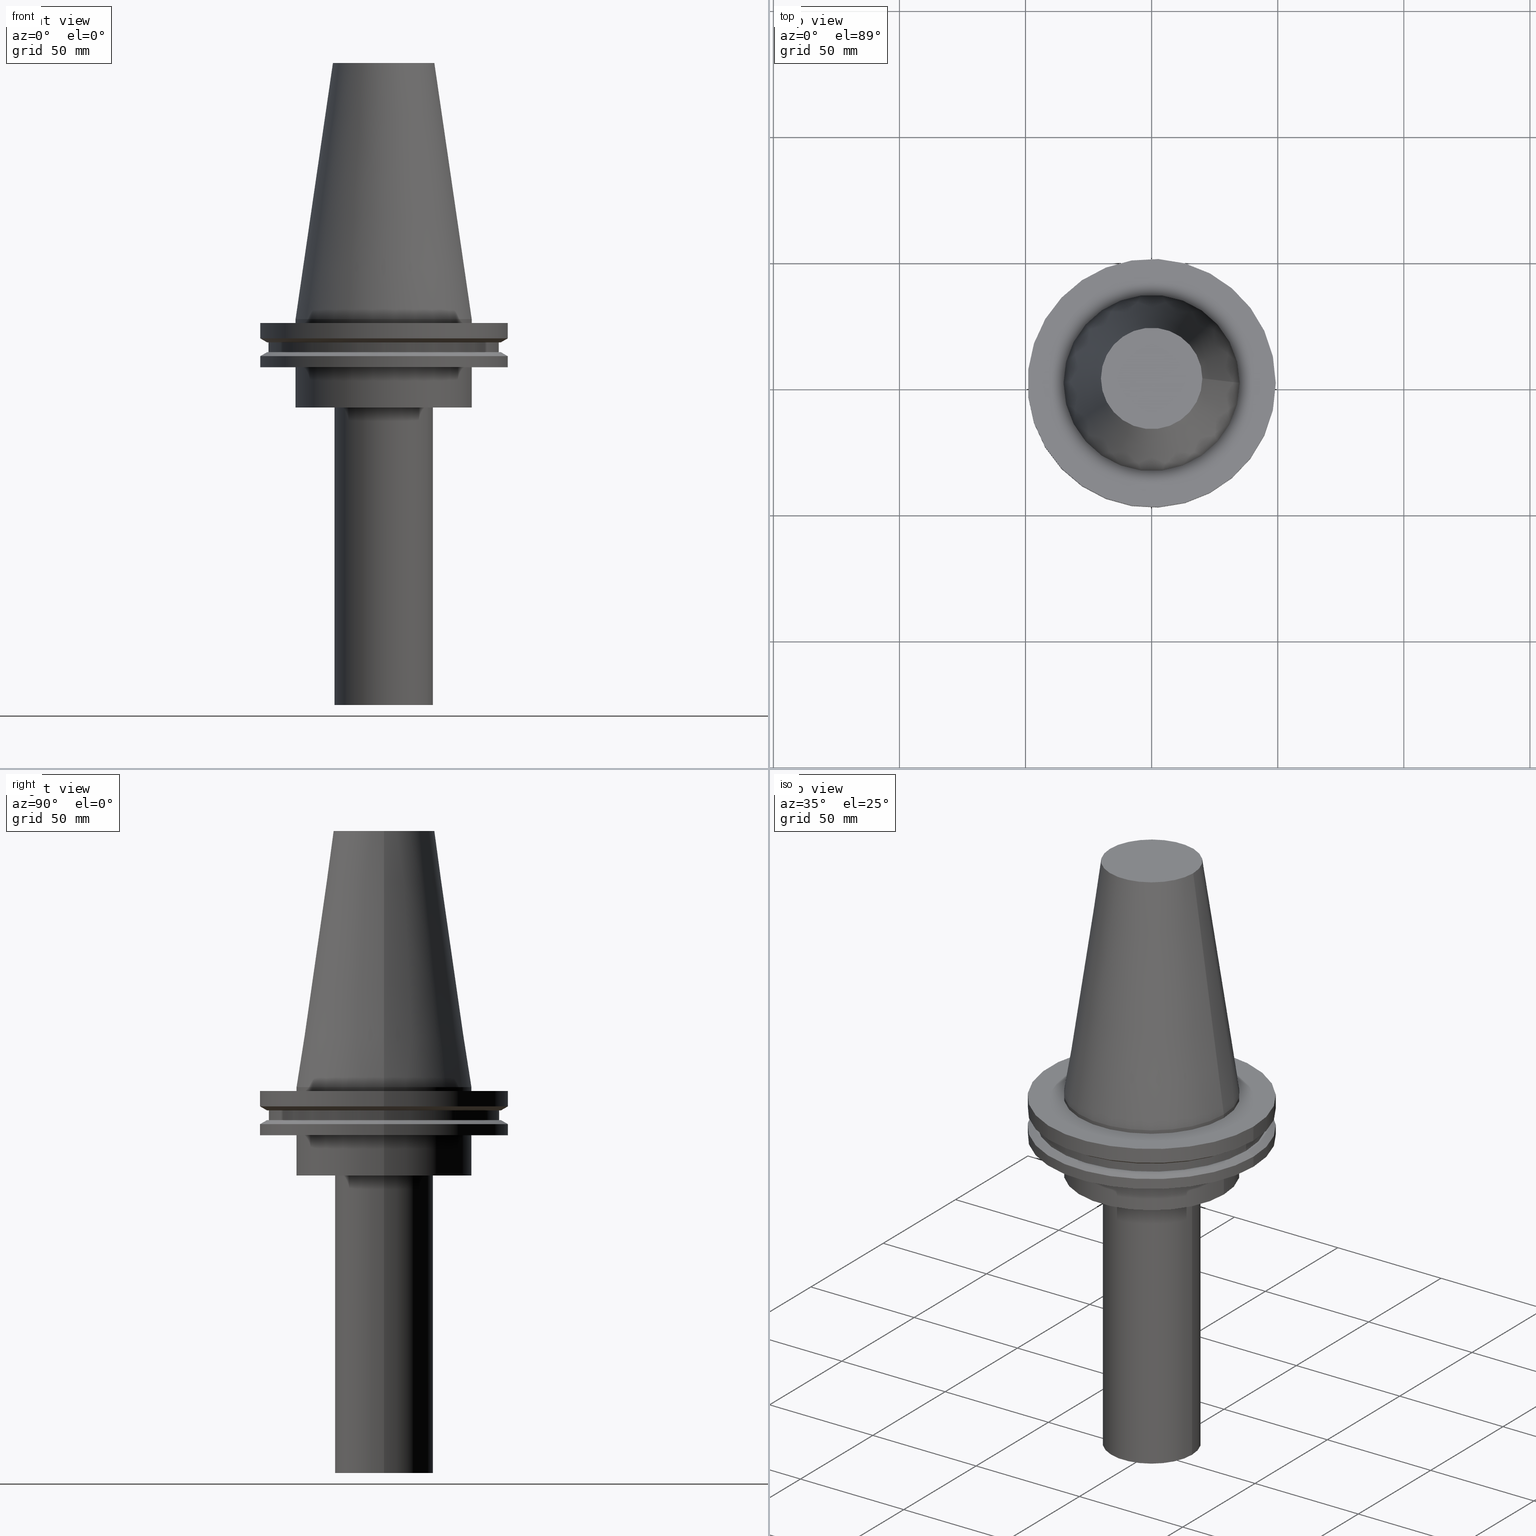
[diagram: canonical four-view strip — front | top / right | iso, engineering-drawing reading convention]
A machine part, canonical four-view strip (front | top / right | iso — engineering-drawing reading convention). The complete STEP part file that produces these views, byte-faithful:
ISO-10303-21;
HEADER;
FILE_DESCRIPTION (( 'STEP AP203' ),
    '1' );
FILE_NAME ('11.368.644.stp',
    '2022-03-09T15:20:34',
    ( '' ),
    ( '' ),
    'SwSTEP 2.0',
    'SolidWorks 2021',
    '' );
FILE_SCHEMA (( 'CONFIG_CONTROL_DESIGN' ));
ENDSEC;

DATA;
#1 = DIRECTION ( 'NONE',  ( -1.000000000000000000, 0.000000000000000000, 0.000000000000000000 ) ) ;
#2 = CALENDAR_DATE ( 2022, 9, 3 ) ;
#3 = EDGE_LOOP ( 'NONE', ( #162 ) ) ;
#4 = LOCAL_TIME ( 9, 20, 34.00000000000000000, #36 ) ;
#5 = AXIS2_PLACEMENT_3D ( 'NONE', #389, #117, #152 ) ;
#6 = CARTESIAN_POINT ( 'NONE',  ( 0.000000000000000000, 0.000000000000000000, -35.00000000000000000 ) ) ;
#7 = ORIENTED_EDGE ( 'NONE', *, *, #279, .F. ) ;
#8 = APPROVAL_ROLE ( '' ) ;
#9 = ADVANCED_FACE ( 'NONE', ( #246, #218 ), #37, .F. ) ;
#10 = EDGE_LOOP ( 'NONE', ( #222 ) ) ;
#11 = CARTESIAN_POINT ( 'NONE',  ( 0.000000000000000000, 46.43919780457007818, -9.204999999999998295 ) ) ;
#12 = AXIS2_PLACEMENT_3D ( 'NONE', #140, #255, #166 ) ;
#13 = CC_DESIGN_PERSON_AND_ORGANIZATION_ASSIGNMENT ( #114, #380, ( #243 ) ) ;
#14 = ORIENTED_EDGE ( 'NONE', *, *, #279, .T. ) ;
#15 = CARTESIAN_POINT ( 'NONE',  ( 0.000000000000000000, 0.000000000000000000, -1.499999999999987566 ) ) ;
#16 = CC_DESIGN_SECURITY_CLASSIFICATION ( #243, ( #376 ) ) ;
#17 = FACE_OUTER_BOUND ( 'NONE', #366, .T. ) ;
#18 = DIRECTION ( 'NONE',  ( 1.000000000000000000, 0.000000000000000000, 0.000000000000000000 ) ) ;
#19 = DIRECTION ( 'NONE',  ( -0.000000000000000000, -0.000000000000000000, 1.000000000000000000 ) ) ;
#20 = DIRECTION ( 'NONE',  ( 1.000000000000000000, 0.000000000000000000, 0.000000000000000000 ) ) ;
#21 = CARTESIAN_POINT ( 'NONE',  ( 19.50000000000000000, 0.000000000000000000, -35.00000000000000000 ) ) ;
#22 = CYLINDRICAL_SURFACE ( 'NONE', #72, 45.64500000000000313 ) ;
#23 = AXIS2_PLACEMENT_3D ( 'NONE', #390, #226, #77 ) ;
#24 = VERTEX_POINT ( 'NONE', #43 ) ;
#25 = CARTESIAN_POINT ( 'NONE',  ( 0.000000000000000000, 49.21499999999998920, -19.04999999999999716 ) ) ;
#26 = CYLINDRICAL_SURFACE ( 'NONE', #23, 19.50000000000000000 ) ;
#27 = FACE_OUTER_BOUND ( 'NONE', #282, .T. ) ;
#28 = CC_DESIGN_PERSON_AND_ORGANIZATION_ASSIGNMENT ( #156, #179, ( #132 ) ) ;
#29 = APPROVAL_PERSON_ORGANIZATION ( #83, #339, #266 ) ;
#30 = DIRECTION ( 'NONE',  ( 1.000000000000000000, 0.000000000000000000, 0.000000000000000000 ) ) ;
#31 = PERSON_AND_ORGANIZATION_ROLE ( 'design_owner' ) ;
#32 = ADVANCED_FACE ( 'NONE', ( #373, #287 ), #190, .T. ) ;
#33 = ORIENTED_EDGE ( 'NONE', *, *, #115, .T. ) ;
#34 = CIRCLE ( 'NONE', #238, 46.43919780457007818 ) ;
#35 = EDGE_LOOP ( 'NONE', ( #192 ) ) ;
#36 = COORDINATED_UNIVERSAL_TIME_OFFSET ( 6, 0, .BEHIND. ) ;
#37 = PLANE ( 'NONE',  #175 ) ;
#38 = CC_DESIGN_DATE_AND_TIME_ASSIGNMENT ( #199, #237, ( #243 ) ) ;
#39 = ORIENTED_EDGE ( 'NONE', *, *, #271, .T. ) ;
#40 = FACE_OUTER_BOUND ( 'NONE', #240, .T. ) ;
#41 = CARTESIAN_POINT ( 'NONE',  ( 0.000000000000000000, 0.000000000000000000, -9.204999999999991189 ) ) ;
#42 = ADVANCED_FACE ( 'NONE', ( #319, #40 ), #280, .T. ) ;
#43 = CARTESIAN_POINT ( 'NONE',  ( 49.21500000000000341, 0.000000000000000000, -7.602389855251287187 ) ) ;
#44 = CIRCLE ( 'NONE', #12, 19.50000000000000000 ) ;
#45 = FACE_OUTER_BOUND ( 'NONE', #124, .T. ) ;
#46 = VERTEX_POINT ( 'NONE', #386 ) ;
#47 = DIRECTION ( 'NONE',  ( -0.000000000000000000, -0.000000000000000000, 1.000000000000000000 ) ) ;
#48 = CC_DESIGN_PERSON_AND_ORGANIZATION_ASSIGNMENT ( #232, #148, ( #376 ) ) ;
#49 = VERTEX_POINT ( 'NONE', #328 ) ;
#50 = CALENDAR_DATE ( 2022, 9, 3 ) ;
#51 = AXIS2_PLACEMENT_3D ( 'NONE', #101, #171, #100 ) ;
#52 = ORIENTED_EDGE ( 'NONE', *, *, #65, .F. ) ;
#53 = APPLICATION_PROTOCOL_DEFINITION ( 'international standard', 'config_control_design', 1994, #394 ) ;
#54 = DIRECTION ( 'NONE',  ( 0.000000000000000000, -0.000000000000000000, 1.000000000000000000 ) ) ;
#55 = DIRECTION ( 'NONE',  ( -1.000000000000000000, 0.000000000000000000, -0.000000000000000000 ) ) ;
#56 = ORIENTED_EDGE ( 'NONE', *, *, #327, .T. ) ;
#57 = FACE_BOUND ( 'NONE', #184, .T. ) ;
#58 = ORIENTED_EDGE ( 'NONE', *, *, #105, .F. ) ;
#59 = DATE_AND_TIME ( #345, #134 ) ;
#60 = EDGE_LOOP ( 'NONE', ( #39 ) ) ;
#61 = EDGE_CURVE ( 'NONE', #207, #207, #44, .T. ) ;
#62 = DIRECTION ( 'NONE',  ( 1.000000000000000000, 0.000000000000000000, 0.000000000000000000 ) ) ;
#63 = AXIS2_PLACEMENT_3D ( 'NONE', #295, #19, #164 ) ;
#64 = FACE_OUTER_BOUND ( 'NONE', #364, .T. ) ;
#65 = EDGE_CURVE ( 'NONE', #24, #24, #231, .T. ) ;
#66 = VERTEX_POINT ( 'NONE', #200 ) ;
#67 = PERSON_AND_ORGANIZATION_ROLE ( 'creator' ) ;
#68 = DIRECTION ( 'NONE',  ( 1.000000000000000000, 0.000000000000000000, 0.000000000000000000 ) ) ;
#69 = VERTEX_POINT ( 'NONE', #383 ) ;
#70 = EDGE_CURVE ( 'NONE', #109, #109, #123, .T. ) ;
#71 = COORDINATED_UNIVERSAL_TIME_OFFSET ( 6, 0, .BEHIND. ) ;
#72 = AXIS2_PLACEMENT_3D ( 'NONE', #144, #267, #307 ) ;
#73 = EDGE_CURVE ( 'NONE', #270, #270, #136, .T. ) ;
#74 = CARTESIAN_POINT ( 'NONE',  ( 0.000000000000000000, 0.000000000000000000, -9.204999999999991189 ) ) ;
#75 = DESIGN_CONTEXT ( 'detailed design', #394, 'design' ) ;
#76 = DIRECTION ( 'NONE',  ( 0.000000000000000000, -0.000000000000000000, 1.000000000000000000 ) ) ;
#77 = DIRECTION ( 'NONE',  ( 1.000000000000000000, 0.000000000000000000, 0.000000000000000000 ) ) ;
#78 = CALENDAR_DATE ( 2022, 9, 3 ) ;
#79 = CARTESIAN_POINT ( 'NONE',  ( 0.000000000000000000, 0.000000000000000000, 101.5999999999999943 ) ) ;
#80 = ORIENTED_EDGE ( 'NONE', *, *, #70, .T. ) ;
#81 = CARTESIAN_POINT ( 'NONE',  ( 49.21499999999998920, 0.000000000000000000, -14.65761014474876944 ) ) ;
#82 = UNCERTAINTY_MEASURE_WITH_UNIT (LENGTH_MEASURE( 1.000000000000000082E-05 ), #185, 'distance_accuracy_value', 'NONE');
#83 = PERSON_AND_ORGANIZATION ( #103, #84 ) ;
#84 = ORGANIZATION ( 'UNSPECIFIED', 'UNSPECIFIED', '' ) ;
#85 = CIRCLE ( 'NONE', #288, 34.92499999999999716 ) ;
#86 = APPLICATION_PROTOCOL_DEFINITION ( 'international standard', 'config_control_design', 1994, #353 ) ;
#87 = AXIS2_PLACEMENT_3D ( 'NONE', #360, #236, #358 ) ;
#88 = ORIENTED_EDGE ( 'NONE', *, *, #221, .T. ) ;
#89 = DATE_AND_TIME ( #2, #116 ) ;
#90 = EDGE_LOOP ( 'NONE', ( #122 ) ) ;
#91 = ADVANCED_FACE ( 'NONE', ( #223, #45 ), #195, .F. ) ;
#92 = DATE_TIME_ROLE ( 'creation_date' ) ;
#93 = ORIENTED_EDGE ( 'NONE', *, *, #73, .F. ) ;
#94 = AXIS2_PLACEMENT_3D ( 'NONE', #120, #335, #241 ) ;
#95 = EDGE_LOOP ( 'NONE', ( #194 ) ) ;
#96 = EDGE_LOOP ( 'NONE', ( #7 ) ) ;
#97 = CARTESIAN_POINT ( 'NONE',  ( 0.000000000000000000, 0.000000000000000000, -13.05499999999999794 ) ) ;
#98 =( GEOMETRIC_REPRESENTATION_CONTEXT ( 3 ) GLOBAL_UNCERTAINTY_ASSIGNED_CONTEXT ( ( #82 ) ) GLOBAL_UNIT_ASSIGNED_CONTEXT ( ( #185, #214, #311 ) ) REPRESENTATION_CONTEXT ( 'NONE', 'WORKASPACE' ) );
#99 = AXIS2_PLACEMENT_3D ( 'NONE', #41, #291, #343 ) ;
#100 = DIRECTION ( 'NONE',  ( 1.000000000000000000, 0.000000000000000000, 0.000000000000000000 ) ) ;
#101 = CARTESIAN_POINT ( 'NONE',  ( 0.000000000000000000, 0.000000000000000000, 101.5999999999999943 ) ) ;
#102 = VERTEX_POINT ( 'NONE', #229 ) ;
#103 = PERSON ( 'UNSPECIFIED', 'UNSPECIFIED', 'UNSPECIFIED', ('UNSPECIFIED'), ('UNSPECIFIED'), ('UNSPECIFIED') ) ;
#104 = DIRECTION ( 'NONE',  ( 1.000000000000000000, 0.000000000000000000, 0.000000000000000000 ) ) ;
#105 = EDGE_CURVE ( 'NONE', #49, #49, #34, .T. ) ;
#106 = CARTESIAN_POINT ( 'NONE',  ( 46.43919780457007818, 0.000000000000000000, -9.204999999999991189 ) ) ;
#107 = CIRCLE ( 'NONE', #225, 49.21499999999998920 ) ;
#108 = DIRECTION ( 'NONE',  ( 1.000000000000000000, 0.000000000000000000, 0.000000000000000000 ) ) ;
#109 = VERTEX_POINT ( 'NONE', #141 ) ;
#110 = APPROVAL_DATE_TIME ( #262, #339 ) ;
#111 = FACE_BOUND ( 'NONE', #235, .T. ) ;
#112 = ORIENTED_EDGE ( 'NONE', *, *, #221, .F. ) ;
#113 = CARTESIAN_POINT ( 'NONE',  ( 49.21499999999999631, 0.000000000000000000, -1.499999999999987566 ) ) ;
#114 = PERSON_AND_ORGANIZATION ( #103, #84 ) ;
#115 = EDGE_CURVE ( 'NONE', #170, #170, #189, .T. ) ;
#116 = LOCAL_TIME ( 9, 20, 34.00000000000000000, #367 ) ;
#117 = DIRECTION ( 'NONE',  ( -0.000000000000000000, -0.000000000000000000, 1.000000000000000000 ) ) ;
#118 = AXIS2_PLACEMENT_3D ( 'NONE', #79, #299, #30 ) ;
#119 = DIRECTION ( 'NONE',  ( 0.000000000000000000, 0.000000000000000000, -1.000000000000000000 ) ) ;
#120 = CARTESIAN_POINT ( 'NONE',  ( 0.000000000000000000, 0.000000000000000000, 0.000000000000000000 ) ) ;
#121 = DIRECTION ( 'NONE',  ( -0.000000000000000000, -0.000000000000000000, 1.000000000000000000 ) ) ;
#122 = ORIENTED_EDGE ( 'NONE', *, *, #61, .T. ) ;
#123 = CIRCLE ( 'NONE', #150, 34.92499999999999005 ) ;
#124 = EDGE_LOOP ( 'NONE', ( #180 ) ) ;
#125 = CALENDAR_DATE ( 2022, 9, 3 ) ;
#126 = PRODUCT_RELATED_PRODUCT_CATEGORY ( 'detail', '', ( #269 ) ) ;
#127 = CYLINDRICAL_SURFACE ( 'NONE', #219, 49.21499999999999631 ) ;
#128 = EDGE_LOOP ( 'NONE', ( #276 ) ) ;
#129 = DIRECTION ( 'NONE',  ( 0.000000000000000000, -0.000000000000000000, 1.000000000000000000 ) ) ;
#130 = CIRCLE ( 'NONE', #265, 19.50000000000000000 ) ;
#131 = EDGE_LOOP ( 'NONE', ( #80 ) ) ;
#132 = PRODUCT_DEFINITION ( 'UNKNOWN', '', #376, #75 ) ;
#133 = FACE_OUTER_BOUND ( 'NONE', #314, .T. ) ;
#134 = LOCAL_TIME ( 9, 20, 34.00000000000000000, #217 ) ;
#135 = CARTESIAN_POINT ( 'NONE',  ( 0.000000000000000000, 0.000000000000000000, -19.04999999999999716 ) ) ;
#136 = CIRCLE ( 'NONE', #209, 49.21499999999998920 ) ;
#137 = CYLINDRICAL_SURFACE ( 'NONE', #118, 34.92499999999999716 ) ;
#138 = FACE_OUTER_BOUND ( 'NONE', #368, .T. ) ;
#139 = ADVANCED_FACE ( 'NONE', ( #375, #357 ), #330, .T. ) ;
#140 = CARTESIAN_POINT ( 'NONE',  ( 0.000000000000000000, 0.000000000000000000, -35.00000000000000000 ) ) ;
#141 = CARTESIAN_POINT ( 'NONE',  ( 34.92499999999999005, 0.000000000000000000, -1.499999999999987566 ) ) ;
#142 = CARTESIAN_POINT ( 'NONE',  ( 0.000000000000000000, 0.000000000000000000, -7.602389855251287187 ) ) ;
#143 = CARTESIAN_POINT ( 'NONE',  ( 34.92499999999999005, 0.000000000000000000, 0.000000000000000000 ) ) ;
#144 = CARTESIAN_POINT ( 'NONE',  ( 0.000000000000000000, 0.000000000000000000, 101.5999999999999943 ) ) ;
#145 = CARTESIAN_POINT ( 'NONE',  ( 45.64500000000000313, 0.000000000000000000, -9.204999999999991189 ) ) ;
#146 = DIRECTION ( 'NONE',  ( 1.000000000000000000, 0.000000000000000000, 0.000000000000000000 ) ) ;
#147 = DIRECTION ( 'NONE',  ( 1.000000000000000000, 0.000000000000000000, 0.000000000000000000 ) ) ;
#148 = PERSON_AND_ORGANIZATION_ROLE ( 'design_supplier' ) ;
#149 = FACE_OUTER_BOUND ( 'NONE', #371, .T. ) ;
#150 = AXIS2_PLACEMENT_3D ( 'NONE', #15, #263, #104 ) ;
#151 = ADVANCED_FACE ( 'NONE', ( #323, #17 ), #137, .T. ) ;
#152 = DIRECTION ( 'NONE',  ( 1.000000000000000000, 0.000000000000000000, 0.000000000000000000 ) ) ;
#153 = PERSON_AND_ORGANIZATION ( #103, #84 ) ;
#154 = CARTESIAN_POINT ( 'NONE',  ( 0.000000000000000000, 0.000000000000000000, -153.0000000000000000 ) ) ;
#155 = LOCAL_TIME ( 9, 20, 34.00000000000000000, #260 ) ;
#156 = PERSON_AND_ORGANIZATION ( #103, #84 ) ;
#157 = DIRECTION ( 'NONE',  ( -0.000000000000000000, -0.000000000000000000, 1.000000000000000000 ) ) ;
#158 = EDGE_LOOP ( 'NONE', ( #347 ) ) ;
#159 = PERSON_AND_ORGANIZATION ( #103, #84 ) ;
#160 = CC_DESIGN_PERSON_AND_ORGANIZATION_ASSIGNMENT ( #309, #31, ( #269 ) ) ;
#161 = ADVANCED_BREP_SHAPE_REPRESENTATION ( '11.368.644', ( #274, #94 ), #98 ) ;
#162 = ORIENTED_EDGE ( 'NONE', *, *, #105, .T. ) ;
#163 = AXIS2_PLACEMENT_3D ( 'NONE', #349, #374, #62 ) ;
#164 = DIRECTION ( 'NONE',  ( 1.000000000000000000, 0.000000000000000000, 0.000000000000000000 ) ) ;
#165 = DIRECTION ( 'NONE',  ( -0.000000000000000000, -0.000000000000000000, 1.000000000000000000 ) ) ;
#166 = DIRECTION ( 'NONE',  ( 1.000000000000000000, 0.000000000000000000, 0.000000000000000000 ) ) ;
#167 = APPROVAL ( #278, 'UNSPECIFIED' ) ;
#168 = FACE_BOUND ( 'NONE', #316, .T. ) ;
#169 = AXIS2_PLACEMENT_3D ( 'NONE', #363, #338, #55 ) ;
#170 = VERTEX_POINT ( 'NONE', #143 ) ;
#171 = DIRECTION ( 'NONE',  ( -0.000000000000000000, -0.000000000000000000, 1.000000000000000000 ) ) ;
#172 = DIRECTION ( 'NONE',  ( 1.000000000000000000, 0.000000000000000000, 0.000000000000000000 ) ) ;
#173 = APPROVAL_STATUS ( 'not_yet_approved' ) ;
#174 = VERTEX_POINT ( 'NONE', #145 ) ;
#175 = AXIS2_PLACEMENT_3D ( 'NONE', #11, #129, #252 ) ;
#176 = ADVANCED_FACE ( 'NONE', ( #27, #305 ), #22, .T. ) ;
#177 = PLANE ( 'NONE',  #365 ) ;
#178 = EDGE_LOOP ( 'NONE', ( #58 ) ) ;
#179 = PERSON_AND_ORGANIZATION_ROLE ( 'creator' ) ;
#180 = ORIENTED_EDGE ( 'NONE', *, *, #256, .F. ) ;
#181 = EDGE_CURVE ( 'NONE', #102, #102, #351, .T. ) ;
#182 = FACE_BOUND ( 'NONE', #178, .T. ) ;
#183 = CLOSED_SHELL ( 'NONE', ( #306, #227, #91, #151, #211, #42, #187, #285, #176, #9, #32, #290, #361, #139, #334, #322 ) ) ;
#184 = EDGE_LOOP ( 'NONE', ( #112 ) ) ;
#185 =( LENGTH_UNIT ( ) NAMED_UNIT ( * ) SI_UNIT ( .MILLI., .METRE. ) );
#186 = FACE_OUTER_BOUND ( 'NONE', #3, .T. ) ;
#187 = ADVANCED_FACE ( 'NONE', ( #182, #277 ), #346, .T. ) ;
#188 = ORIENTED_EDGE ( 'NONE', *, *, #370, .F. ) ;
#189 = CIRCLE ( 'NONE', #385, 34.92499999999999005 ) ;
#190 = CONICAL_SURFACE ( 'NONE', #163, 46.43919780457007818, 1.047197551196575205 ) ;
#191 = APPROVAL_DATE_TIME ( #59, #393 ) ;
#192 = ORIENTED_EDGE ( 'NONE', *, *, #297, .F. ) ;
#193 = ORIENTED_EDGE ( 'NONE', *, *, #61, .F. ) ;
#194 = ORIENTED_EDGE ( 'NONE', *, *, #70, .F. ) ;
#195 = PLANE ( 'NONE',  #253 ) ;
#196 = DIRECTION ( 'NONE',  ( 1.000000000000000000, 0.000000000000000000, 0.000000000000000000 ) ) ;
#197 = CC_DESIGN_DATE_AND_TIME_ASSIGNMENT ( #249, #92, ( #132 ) ) ;
#198 = VERTEX_POINT ( 'NONE', #234 ) ;
#199 = DATE_AND_TIME ( #50, #325 ) ;
#200 = CARTESIAN_POINT ( 'NONE',  ( 34.92499999999999716, 0.000000000000000000, -19.04999999999999716 ) ) ;
#201 = CIRCLE ( 'NONE', #5, 45.64500000000000313 ) ;
#202 = SHAPE_DEFINITION_REPRESENTATION ( #208, #161 ) ;
#203 = DIRECTION ( 'NONE',  ( 1.000000000000000000, 0.000000000000000000, 0.000000000000000000 ) ) ;
#204 = FACE_OUTER_BOUND ( 'NONE', #216, .T. ) ;
#205 = DIRECTION ( 'NONE',  ( -0.000000000000000000, -0.000000000000000000, 1.000000000000000000 ) ) ;
#206 = FACE_BOUND ( 'NONE', #95, .T. ) ;
#207 = VERTEX_POINT ( 'NONE', #21 ) ;
#208 = PRODUCT_DEFINITION_SHAPE ( 'NONE', 'NONE',  #132 ) ;
#209 = AXIS2_PLACEMENT_3D ( 'NONE', #377, #228, #384 ) ;
#210 = FACE_OUTER_BOUND ( 'NONE', #310, .T. ) ;
#211 = ADVANCED_FACE ( 'NONE', ( #210, #111 ), #387, .F. ) ;
#212 = EDGE_LOOP ( 'NONE', ( #52 ) ) ;
#213 = AXIS2_PLACEMENT_3D ( 'NONE', #304, #329, #301 ) ;
#214 =( NAMED_UNIT ( * ) PLANE_ANGLE_UNIT ( ) SI_UNIT ( $, .RADIAN. ) );
#215 = ORIENTED_EDGE ( 'NONE', *, *, #256, .T. ) ;
#216 = EDGE_LOOP ( 'NONE', ( #193 ) ) ;
#217 = COORDINATED_UNIVERSAL_TIME_OFFSET ( 6, 0, .BEHIND. ) ;
#218 = FACE_BOUND ( 'NONE', #60, .T. ) ;
#219 = AXIS2_PLACEMENT_3D ( 'NONE', #341, #264, #18 ) ;
#220 = ORIENTED_EDGE ( 'NONE', *, *, #370, .T. ) ;
#221 = EDGE_CURVE ( 'NONE', #46, #46, #201, .T. ) ;
#222 = ORIENTED_EDGE ( 'NONE', *, *, #73, .T. ) ;
#223 = FACE_BOUND ( 'NONE', #90, .T. ) ;
#224 = CC_DESIGN_APPROVAL ( #339, ( #243 ) ) ;
#225 = AXIS2_PLACEMENT_3D ( 'NONE', #259, #324, #172 ) ;
#226 = DIRECTION ( 'NONE',  ( -0.000000000000000000, -0.000000000000000000, 1.000000000000000000 ) ) ;
#227 = ADVANCED_FACE ( 'NONE', ( #149 ), #275, .F. ) ;
#228 = DIRECTION ( 'NONE',  ( -0.000000000000000000, -0.000000000000000000, 1.000000000000000000 ) ) ;
#229 = CARTESIAN_POINT ( 'NONE',  ( 20.10819343178871321, 0.000000000000000000, 101.5999999999999801 ) ) ;
#230 = FACE_OUTER_BOUND ( 'NONE', #128, .T. ) ;
#231 = CIRCLE ( 'NONE', #362, 49.21500000000000341 ) ;
#232 = PERSON_AND_ORGANIZATION ( #103, #84 ) ;
#233 = CARTESIAN_POINT ( 'NONE',  ( 0.000000000000000000, 0.000000000000000000, 0.000000000000000000 ) ) ;
#234 = CARTESIAN_POINT ( 'NONE',  ( 49.21499999999998920, 0.000000000000000000, -19.04999999999999716 ) ) ;
#235 = EDGE_LOOP ( 'NONE', ( #14 ) ) ;
#236 = DIRECTION ( 'NONE',  ( 0.000000000000000000, -0.000000000000000000, 1.000000000000000000 ) ) ;
#237 = DATE_TIME_ROLE ( 'classification_date' ) ;
#238 = AXIS2_PLACEMENT_3D ( 'NONE', #97, #205, #203 ) ;
#239 = EDGE_CURVE ( 'NONE', #261, #261, #130, .T. ) ;
#240 = EDGE_LOOP ( 'NONE', ( #56 ) ) ;
#241 = DIRECTION ( 'NONE',  ( 1.000000000000000000, 0.000000000000000000, 0.000000000000000000 ) ) ;
#242 = APPROVAL_DATE_TIME ( #89, #167 ) ;
#243 = SECURITY_CLASSIFICATION ( '', '', #382 ) ;
#244 = DIRECTION ( 'NONE',  ( 1.000000000000000000, 0.000000000000000000, 0.000000000000000000 ) ) ;
#245 = CIRCLE ( 'NONE', #302, 49.21499999999999631 ) ;
#246 = FACE_OUTER_BOUND ( 'NONE', #35, .T. ) ;
#247 = APPROVAL_ROLE ( '' ) ;
#248 = ORIENTED_EDGE ( 'NONE', *, *, #239, .F. ) ;
#249 = DATE_AND_TIME ( #125, #4 ) ;
#250 = EDGE_LOOP ( 'NONE', ( #93 ) ) ;
#251 = CC_DESIGN_APPROVAL ( #393, ( #376 ) ) ;
#252 = DIRECTION ( 'NONE',  ( 1.000000000000000000, 0.000000000000000000, 0.000000000000000000 ) ) ;
#253 = AXIS2_PLACEMENT_3D ( 'NONE', #292, #76, #196 ) ;
#254 = ORIENTED_EDGE ( 'NONE', *, *, #65, .T. ) ;
#255 = DIRECTION ( 'NONE',  ( -0.000000000000000000, -0.000000000000000000, 1.000000000000000000 ) ) ;
#256 = EDGE_CURVE ( 'NONE', #69, #69, #320, .T. ) ;
#257 = CARTESIAN_POINT ( 'NONE',  ( 0.000000000000000000, 45.64500000000000313, -13.05499999999999794 ) ) ;
#258 = DIRECTION ( 'NONE',  ( -0.000000000000000000, -0.000000000000000000, 1.000000000000000000 ) ) ;
#259 = CARTESIAN_POINT ( 'NONE',  ( 0.000000000000000000, 0.000000000000000000, -19.04999999999999716 ) ) ;
#260 = COORDINATED_UNIVERSAL_TIME_OFFSET ( 6, 0, .BEHIND. ) ;
#261 = VERTEX_POINT ( 'NONE', #333 ) ;
#262 = DATE_AND_TIME ( #78, #155 ) ;
#263 = DIRECTION ( 'NONE',  ( -0.000000000000000000, -0.000000000000000000, 1.000000000000000000 ) ) ;
#264 = DIRECTION ( 'NONE',  ( -0.000000000000000000, -0.000000000000000000, 1.000000000000000000 ) ) ;
#265 = AXIS2_PLACEMENT_3D ( 'NONE', #154, #157, #281 ) ;
#266 = APPROVAL_ROLE ( '' ) ;
#267 = DIRECTION ( 'NONE',  ( -0.000000000000000000, -0.000000000000000000, 1.000000000000000000 ) ) ;
#268 = VERTEX_POINT ( 'NONE', #106 ) ;
#269 = PRODUCT ( '11.368.644', '11.368.644', '', ( #273 ) ) ;
#270 = VERTEX_POINT ( 'NONE', #81 ) ;
#271 = EDGE_CURVE ( 'NONE', #174, #174, #326, .T. ) ;
#272 = DIRECTION ( 'NONE',  ( -0.000000000000000000, -0.000000000000000000, 1.000000000000000000 ) ) ;
#273 = MECHANICAL_CONTEXT ( 'NONE', #353, 'mechanical' ) ;
#274 = MANIFOLD_SOLID_BREP ( 'CKB', #183 ) ;
#275 = PLANE ( 'NONE',  #169 ) ;
#276 = ORIENTED_EDGE ( 'NONE', *, *, #239, .T. ) ;
#277 = FACE_OUTER_BOUND ( 'NONE', #10, .T. ) ;
#278 = APPROVAL_STATUS ( 'not_yet_approved' ) ;
#279 = EDGE_CURVE ( 'NONE', #66, #66, #85, .T. ) ;
#280 = CYLINDRICAL_SURFACE ( 'NONE', #51, 49.21499999999998920 ) ;
#281 = DIRECTION ( 'NONE',  ( 1.000000000000000000, 0.000000000000000000, 0.000000000000000000 ) ) ;
#282 = EDGE_LOOP ( 'NONE', ( #284 ) ) ;
#283 = DIRECTION ( 'NONE',  ( 0.000000000000000000, 0.000000000000000000, -1.000000000000000000 ) ) ;
#284 = ORIENTED_EDGE ( 'NONE', *, *, #271, .F. ) ;
#285 = ADVANCED_FACE ( 'NONE', ( #57, #186 ), #312, .F. ) ;
#286 = ORIENTED_EDGE ( 'NONE', *, *, #327, .F. ) ;
#287 = FACE_BOUND ( 'NONE', #158, .T. ) ;
#288 = AXIS2_PLACEMENT_3D ( 'NONE', #135, #321, #244 ) ;
#289 = DIRECTION ( 'NONE',  ( -1.000000000000000000, 0.000000000000000000, -0.000000000000000000 ) ) ;
#290 = ADVANCED_FACE ( 'NONE', ( #133, #64 ), #127, .T. ) ;
#291 = DIRECTION ( 'NONE',  ( -0.000000000000000000, -0.000000000000000000, 1.000000000000000000 ) ) ;
#292 = CARTESIAN_POINT ( 'NONE',  ( 0.000000000000000000, 34.92499999999999716, -35.00000000000000000 ) ) ;
#293 = AXIS2_PLACEMENT_3D ( 'NONE', #303, #272, #391 ) ;
#294 = FACE_OUTER_BOUND ( 'NONE', #317, .T. ) ;
#295 = CARTESIAN_POINT ( 'NONE',  ( 0.000000000000000000, 0.000000000000000000, 101.5999999999999943 ) ) ;
#296 = DIRECTION ( 'NONE',  ( -1.000000000000000000, 0.000000000000000000, -0.000000000000000000 ) ) ;
#297 = EDGE_CURVE ( 'NONE', #268, #268, #313, .T. ) ;
#298 = DIRECTION ( 'NONE',  ( -0.000000000000000000, -0.000000000000000000, 1.000000000000000000 ) ) ;
#299 = DIRECTION ( 'NONE',  ( -0.000000000000000000, -0.000000000000000000, 1.000000000000000000 ) ) ;
#300 = APPROVAL_PERSON_ORGANIZATION ( #153, #167, #247 ) ;
#301 = DIRECTION ( 'NONE',  ( -1.000000000000000000, 0.000000000000000000, 0.000000000000000000 ) ) ;
#302 = AXIS2_PLACEMENT_3D ( 'NONE', #381, #298, #147 ) ;
#303 = CARTESIAN_POINT ( 'NONE',  ( 0.000000000000000000, 0.000000000000000000, 101.5999999999999801 ) ) ;
#304 = CARTESIAN_POINT ( 'NONE',  ( 0.000000000000000000, 0.000000000000000000, 0.000000000000000000 ) ) ;
#305 = FACE_OUTER_BOUND ( 'NONE', #337, .T. ) ;
#306 = ADVANCED_FACE ( 'NONE', ( #168, #138 ), #340, .T. ) ;
#307 = DIRECTION ( 'NONE',  ( 1.000000000000000000, 0.000000000000000000, 0.000000000000000000 ) ) ;
#308 = AXIS2_PLACEMENT_3D ( 'NONE', #336, #119, #1 ) ;
#309 = PERSON_AND_ORGANIZATION ( #103, #84 ) ;
#310 = EDGE_LOOP ( 'NONE', ( #286 ) ) ;
#311 =( NAMED_UNIT ( * ) SI_UNIT ( $, .STERADIAN. ) SOLID_ANGLE_UNIT ( ) );
#312 = PLANE ( 'NONE',  #392 ) ;
#313 = CIRCLE ( 'NONE', #378, 46.43919780457007818 ) ;
#314 = EDGE_LOOP ( 'NONE', ( #188 ) ) ;
#315 = PERSON_AND_ORGANIZATION ( #103, #84 ) ;
#316 = EDGE_LOOP ( 'NONE', ( #348 ) ) ;
#317 = EDGE_LOOP ( 'NONE', ( #220 ) ) ;
#318 = APPROVAL_PERSON_ORGANIZATION ( #159, #393, #8 ) ;
#319 = FACE_OUTER_BOUND ( 'NONE', #250, .T. ) ;
#320 = CIRCLE ( 'NONE', #355, 34.92499999999999716 ) ;
#321 = DIRECTION ( 'NONE',  ( -0.000000000000000000, -0.000000000000000000, 1.000000000000000000 ) ) ;
#322 = ADVANCED_FACE ( 'NONE', ( #354 ), #352, .F. ) ;
#323 = FACE_OUTER_BOUND ( 'NONE', #96, .T. ) ;
#324 = DIRECTION ( 'NONE',  ( -0.000000000000000000, -0.000000000000000000, 1.000000000000000000 ) ) ;
#325 = LOCAL_TIME ( 9, 20, 34.00000000000000000, #71 ) ;
#326 = CIRCLE ( 'NONE', #99, 45.64500000000000313 ) ;
#327 = EDGE_CURVE ( 'NONE', #198, #198, #107, .T. ) ;
#328 = CARTESIAN_POINT ( 'NONE',  ( 46.43919780457007818, 0.000000000000000000, -13.05499999999999794 ) ) ;
#329 = DIRECTION ( 'NONE',  ( 0.000000000000000000, 0.000000000000000000, -1.000000000000000000 ) ) ;
#330 = CYLINDRICAL_SURFACE ( 'NONE', #63, 34.92499999999999005 ) ;
#331 = DIRECTION ( 'NONE',  ( 0.000000000000000000, 0.000000000000000000, -1.000000000000000000 ) ) ;
#332 = CC_DESIGN_APPROVAL ( #167, ( #132 ) ) ;
#333 = CARTESIAN_POINT ( 'NONE',  ( 19.50000000000000000, 0.000000000000000000, -153.0000000000000000 ) ) ;
#334 = ADVANCED_FACE ( 'NONE', ( #204, #230 ), #26, .T. ) ;
#335 = DIRECTION ( 'NONE',  ( 0.000000000000000000, 0.000000000000000000, 1.000000000000000000 ) ) ;
#336 = CARTESIAN_POINT ( 'NONE',  ( 0.000000000000000000, 0.000000000000000000, -14.65761014474876944 ) ) ;
#337 = EDGE_LOOP ( 'NONE', ( #88 ) ) ;
#338 = DIRECTION ( 'NONE',  ( 0.000000000000000000, 0.000000000000000000, -1.000000000000000000 ) ) ;
#339 = APPROVAL ( #173, 'UNSPECIFIED' ) ;
#340 = CONICAL_SURFACE ( 'NONE', #213, 34.92499999999999005, 0.1448138465474119452 ) ;
#341 = CARTESIAN_POINT ( 'NONE',  ( 0.000000000000000000, 0.000000000000000000, 101.5999999999999943 ) ) ;
#342 = EDGE_LOOP ( 'NONE', ( #248 ) ) ;
#343 = DIRECTION ( 'NONE',  ( 1.000000000000000000, 0.000000000000000000, 0.000000000000000000 ) ) ;
#344 = ORIENTED_EDGE ( 'NONE', *, *, #181, .T. ) ;
#345 = CALENDAR_DATE ( 2022, 9, 3 ) ;
#346 = CONICAL_SURFACE ( 'NONE', #308, 49.21499999999998920, 1.047197551196554333 ) ;
#347 = ORIENTED_EDGE ( 'NONE', *, *, #297, .T. ) ;
#348 = ORIENTED_EDGE ( 'NONE', *, *, #181, .F. ) ;
#349 = CARTESIAN_POINT ( 'NONE',  ( 0.000000000000000000, 0.000000000000000000, -9.204999999999991189 ) ) ;
#350 = CC_DESIGN_PERSON_AND_ORGANIZATION_ASSIGNMENT ( #315, #67, ( #376 ) ) ;
#351 = CIRCLE ( 'NONE', #293, 20.10819343178871321 ) ;
#352 = PLANE ( 'NONE',  #87 ) ;
#353 = APPLICATION_CONTEXT ( 'configuration controlled 3d designs of mechanical parts and assemblies' ) ;
#354 = FACE_OUTER_BOUND ( 'NONE', #342, .T. ) ;
#355 = AXIS2_PLACEMENT_3D ( 'NONE', #6, #121, #379 ) ;
#356 = CARTESIAN_POINT ( 'NONE',  ( 0.000000000000000000, 49.21499999999999631, -1.499999999999992895 ) ) ;
#357 = FACE_OUTER_BOUND ( 'NONE', #131, .T. ) ;
#358 = DIRECTION ( 'NONE',  ( 1.000000000000000000, 0.000000000000000000, 0.000000000000000000 ) ) ;
#359 = ORIENTED_EDGE ( 'NONE', *, *, #115, .F. ) ;
#360 = CARTESIAN_POINT ( 'NONE',  ( 0.000000000000000000, 19.50000000000000000, -153.0000000000000000 ) ) ;
#361 = ADVANCED_FACE ( 'NONE', ( #206, #294 ), #177, .F. ) ;
#362 = AXIS2_PLACEMENT_3D ( 'NONE', #142, #165, #68 ) ;
#363 = CARTESIAN_POINT ( 'NONE',  ( 0.000000000000000000, 20.10819343178871321, 101.5999999999999943 ) ) ;
#364 = EDGE_LOOP ( 'NONE', ( #254 ) ) ;
#365 = AXIS2_PLACEMENT_3D ( 'NONE', #356, #331, #296 ) ;
#366 = EDGE_LOOP ( 'NONE', ( #215 ) ) ;
#367 = COORDINATED_UNIVERSAL_TIME_OFFSET ( 6, 0, .BEHIND. ) ;
#368 = EDGE_LOOP ( 'NONE', ( #33 ) ) ;
#369 = APPROVAL_STATUS ( 'not_yet_approved' ) ;
#370 = EDGE_CURVE ( 'NONE', #388, #388, #245, .T. ) ;
#371 = EDGE_LOOP ( 'NONE', ( #344 ) ) ;
#372 = AXIS2_PLACEMENT_3D ( 'NONE', #25, #54, #146 ) ;
#373 = FACE_OUTER_BOUND ( 'NONE', #212, .T. ) ;
#374 = DIRECTION ( 'NONE',  ( -0.000000000000000000, -0.000000000000000000, 1.000000000000000000 ) ) ;
#375 = FACE_OUTER_BOUND ( 'NONE', #395, .T. ) ;
#376 = PRODUCT_DEFINITION_FORMATION_WITH_SPECIFIED_SOURCE ( 'ANY', '', #269, .NOT_KNOWN. ) ;
#377 = CARTESIAN_POINT ( 'NONE',  ( 0.000000000000000000, 0.000000000000000000, -14.65761014474876944 ) ) ;
#378 = AXIS2_PLACEMENT_3D ( 'NONE', #74, #47, #20 ) ;
#379 = DIRECTION ( 'NONE',  ( 1.000000000000000000, 0.000000000000000000, 0.000000000000000000 ) ) ;
#380 = PERSON_AND_ORGANIZATION_ROLE ( 'classification_officer' ) ;
#381 = CARTESIAN_POINT ( 'NONE',  ( 0.000000000000000000, 0.000000000000000000, -1.499999999999987566 ) ) ;
#382 = SECURITY_CLASSIFICATION_LEVEL ( 'unclassified' ) ;
#383 = CARTESIAN_POINT ( 'NONE',  ( 34.92499999999999716, 0.000000000000000000, -35.00000000000000000 ) ) ;
#384 = DIRECTION ( 'NONE',  ( 1.000000000000000000, 0.000000000000000000, 0.000000000000000000 ) ) ;
#385 = AXIS2_PLACEMENT_3D ( 'NONE', #233, #258, #108 ) ;
#386 = CARTESIAN_POINT ( 'NONE',  ( 45.64500000000000313, 0.000000000000000000, -13.05499999999999794 ) ) ;
#387 = PLANE ( 'NONE',  #372 ) ;
#388 = VERTEX_POINT ( 'NONE', #113 ) ;
#389 = CARTESIAN_POINT ( 'NONE',  ( 0.000000000000000000, 0.000000000000000000, -13.05499999999999794 ) ) ;
#390 = CARTESIAN_POINT ( 'NONE',  ( 0.000000000000000000, 0.000000000000000000, 0.000000000000000000 ) ) ;
#391 = DIRECTION ( 'NONE',  ( 1.000000000000000000, 0.000000000000000000, 0.000000000000000000 ) ) ;
#392 = AXIS2_PLACEMENT_3D ( 'NONE', #257, #283, #289 ) ;
#393 = APPROVAL ( #369, 'UNSPECIFIED' ) ;
#394 = APPLICATION_CONTEXT ( 'configuration controlled 3d designs of mechanical parts and assemblies' ) ;
#395 = EDGE_LOOP ( 'NONE', ( #359 ) ) ;
ENDSEC;
END-ISO-10303-21;
